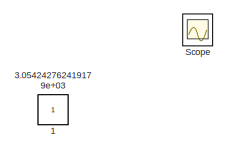
[diagram: root canvas - part 1/3, top left region]
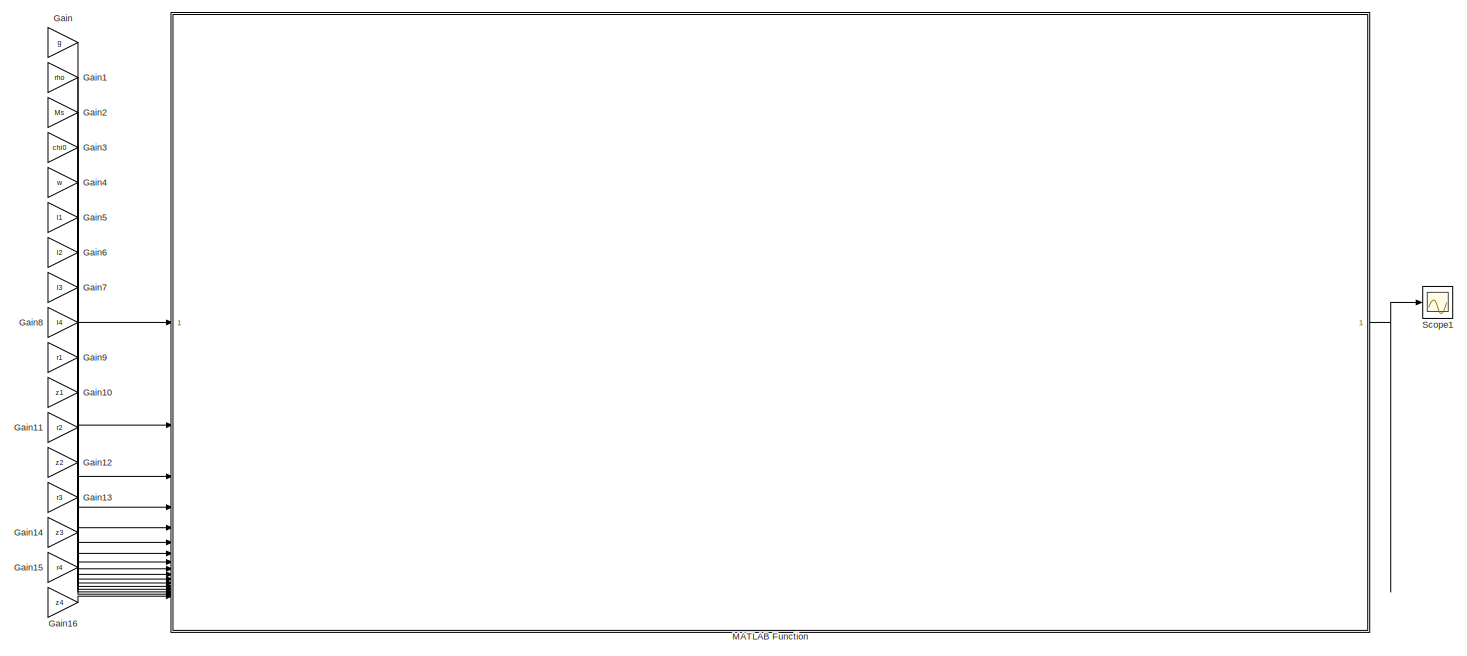
[diagram: root canvas - part 2/3, full width, middle band]
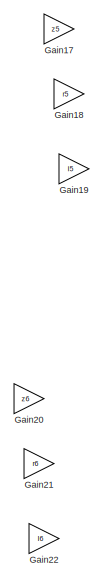
[diagram: root canvas - part 3/3, bottom left region]
MODEL slx_c79450c3cafa
KIND model
CONFIG AbsTol = auto
CONFIG EnableMultiTasking = off
CONFIG FixedStep = auto
CONFIG MaxStep = auto
CONFIG MinStep = auto
CONFIG PreLoadFcn = g = 9.086;\n\n
CONFIG RelTol = 1e-3
CONFIG SampleTimeConstraint = Unconstrained
CONFIG SolverName = VariableStepAuto
CONFIG StartTime = 0.0
CONFIG StopTime = 10.0
WORKSPACE source: mxarray member
WORKSPACE I1 = 6016241.326
WORKSPACE I2 = 7399466.245
WORKSPACE I3 = 689920.7492
WORKSPACE I4 = 52.42660048
WORKSPACE I5 = 4.678936735
WORKSPACE Ms = 2849.727161
WORKSPACE chi0 = 0.1
WORKSPACE g = 9.806
WORKSPACE r1 = 7.004079989
WORKSPACE r2 = 17.29333946
WORKSPACE r3 = 22.26700704
WORKSPACE r4 = 24.99999999
WORKSPACE r5 = 25
WORKSPACE rho = 1045.639438
WORKSPACE w = 0.585459507
WORKSPACE z1 = -5.999999958
WORKSPACE z2 = 3.361582194
WORKSPACE z3 = 4.429855921
WORKSPACE z4 = -5.999999987
WORKSPACE z5 = -5.999999987
BLOCK [Constant] 1
  IOType = siggen
BLOCK [Constant] 3.054242762419179e+03
  IOType = siggen
BLOCK [Gain] Gain
  Gain = g
BLOCK [Gain] Gain1
  Gain = rho
BLOCK [Gain] Gain10
  Gain = z1
BLOCK [Gain] Gain11
  Gain = r2
BLOCK [Gain] Gain12
  Gain = z2
BLOCK [Gain] Gain13
  Gain = r3
BLOCK [Gain] Gain14
  Gain = z3
BLOCK [Gain] Gain15
  Gain = r4
BLOCK [Gain] Gain16
  Gain = z4
BLOCK [Gain] Gain17
  Gain = z5
BLOCK [Gain] Gain18
  Gain = r5
BLOCK [Gain] Gain19
  Gain = I5
BLOCK [Gain] Gain2
  Gain = Ms
BLOCK [Gain] Gain20
  Commented = on
  Gain = z6
BLOCK [Gain] Gain21
  Commented = on
  Gain = r6
BLOCK [Gain] Gain22
  Commented = on
  Gain = I6
BLOCK [Gain] Gain3
  Gain = chi0
BLOCK [Gain] Gain4
  Gain = w
BLOCK [Gain] Gain5
  Gain = I1
BLOCK [Gain] Gain6
  Gain = I2
BLOCK [Gain] Gain7
  Gain = I3
BLOCK [Gain] Gain8
  Gain = I4
BLOCK [Gain] Gain9
  Gain = r1
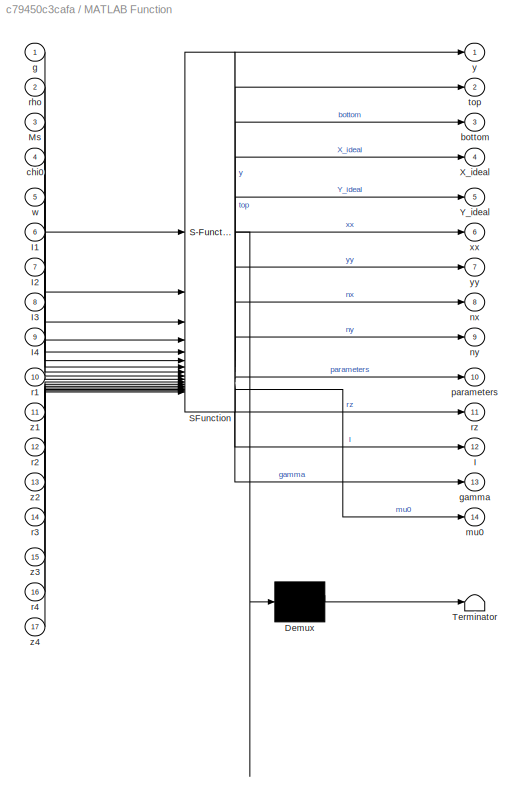
BLOCK [SubSystem] MATLAB Function
  ErrorFcn = Stateflow.Translate.translate
  LibrarySourceBlock = simulink/User-Defined\nFunctions/MATLAB Function
  PermitHierarchicalResolution = ExplicitOnly
  SFBlockType = MATLAB Function
  TreatAsAtomicUnit = on
BLOCK [Demux] MATLAB Function/ Demux 
  Outputs = 1
BLOCK [S-Function] MATLAB Function/ SFunction 
  EnableBusSupport = on
  FunctionName = sf_sfun
  PortCounts = [17 15]
  SFcnIsStateOwnerBlock = off
  SFunctionDeploymentMode = off
  Tag = Stateflow S-Function 2
BLOCK [Terminator] MATLAB Function/ Terminator 
BLOCK [Outport] MATLAB Function/I
  Port = 12
BLOCK [Inport] MATLAB Function/I1
  Port = 6
BLOCK [Inport] MATLAB Function/I2
  Port = 7
BLOCK [Inport] MATLAB Function/I3
  Port = 8
BLOCK [Inport] MATLAB Function/I4
  Port = 9
BLOCK [Inport] MATLAB Function/Ms
  Port = 3
BLOCK [Outport] MATLAB Function/X_ideal
  Port = 4
BLOCK [Outport] MATLAB Function/Y_ideal
  Port = 5
BLOCK [Outport] MATLAB Function/bottom
  Port = 3
BLOCK [Inport] MATLAB Function/chi0
  Port = 4
BLOCK [Inport] MATLAB Function/g
BLOCK [Outport] MATLAB Function/gamma
  Port = 13
BLOCK [Outport] MATLAB Function/mu0
  Port = 14
BLOCK [Outport] MATLAB Function/nx
  Port = 8
BLOCK [Outport] MATLAB Function/ny
  Port = 9
BLOCK [Outport] MATLAB Function/parameters
  Port = 10
BLOCK [Inport] MATLAB Function/r1
  Port = 10
BLOCK [Inport] MATLAB Function/r2
  Port = 12
BLOCK [Inport] MATLAB Function/r3
  Port = 14
BLOCK [Inport] MATLAB Function/r4
  Port = 16
BLOCK [Inport] MATLAB Function/rho
  Port = 2
BLOCK [Outport] MATLAB Function/rz
  Port = 11
BLOCK [Outport] MATLAB Function/top
  Port = 2
BLOCK [Inport] MATLAB Function/w
  Port = 5
BLOCK [Outport] MATLAB Function/xx
  Port = 6
BLOCK [Outport] MATLAB Function/y
BLOCK [Outport] MATLAB Function/yy
  Port = 7
BLOCK [Inport] MATLAB Function/z1
  Port = 11
BLOCK [Inport] MATLAB Function/z2
  Port = 13
BLOCK [Inport] MATLAB Function/z3
  Port = 15
BLOCK [Inport] MATLAB Function/z4
  Port = 17
BLOCK [Scope] Scope
  Floating = off
  IOType = viewer
  NumInputPorts = 1
  ScopeSpecificationString = Simulink.scopes.TimeScopeBlockCfg('CurrentConfiguration', extmgr.ConfigurationSet(extmgr.Configuration('Core','General UI',true),extmgr.Configuration('Core','Source UI',true),extmgr.Configuration('Sources','WiredSimulink',true),extmgr.Configuration('Visuals','Time Domain',true,'SerializedDisplays',{struct('MinYLimReal','2.00000','MaxYLimReal','4.00000','YLabelReal','','MinYLimMag','2.00000','MaxYL...<+1345ch>
BLOCK [Scope] Scope1
  Floating = off
  NumInputPorts = 1
  ScopeSpecificationString = Simulink.scopes.TimeScopeBlockCfg('CurrentConfiguration', extmgr.ConfigurationSet(extmgr.Configuration('Core','General UI',true),extmgr.Configuration('Core','Source UI',true),extmgr.Configuration('Sources','WiredSimulink',true,'DataLoggingVariableName','ScopeData1'),extmgr.Configuration('Visuals','Time Domain',true,'SerializedDisplays',{struct('MinYLimReal','-1.00000','MaxYLimReal','1.00000','YLab...<+1405ch>
LINE Gain10:1 -> MATLAB Function:11
LINE Gain11:1 -> MATLAB Function:12
LINE Gain12:1 -> MATLAB Function:13
LINE Gain13:1 -> MATLAB Function:14
LINE Gain14:1 -> MATLAB Function:15
LINE Gain15:1 -> MATLAB Function:16
LINE Gain16:1 -> MATLAB Function:17
LINE Gain1:1 -> MATLAB Function:2
LINE Gain2:1 -> MATLAB Function:3
LINE Gain3:1 -> MATLAB Function:4
LINE Gain4:1 -> MATLAB Function:5
LINE Gain5:1 -> MATLAB Function:6
LINE Gain6:1 -> MATLAB Function:7
LINE Gain7:1 -> MATLAB Function:8
LINE Gain8:1 -> MATLAB Function:9
LINE Gain9:1 -> MATLAB Function:10
LINE Gain:1 -> MATLAB Function:1
LINE MATLAB Function:1 -> Scope1:1
CHART MATLAB Function states=1 transitions=1
  STATE_LABEL 'eML_blk_kernel()'
  STATE_LABEL 'SCRIPT:\nfunction [y,top,bottom,X_ideal,Y_ideal,xx,yy,nx,ny,parameters,rz,I,gamma,mu0] = mymodel(g,rho,Ms,chi0,w,I1,I2,I3,I4,r1,z1,r2,z2,r3,z3,r4,z4)\n%MYMODEL This is the math model of spherical mirror used for sensitivity analysis\n%--------------------------------------------------------------------------------------\n%   Inputs: \n%          g                    Gravitational acceleration       [m/...<+1760ch>'
CHART  states=0 transitions=0
